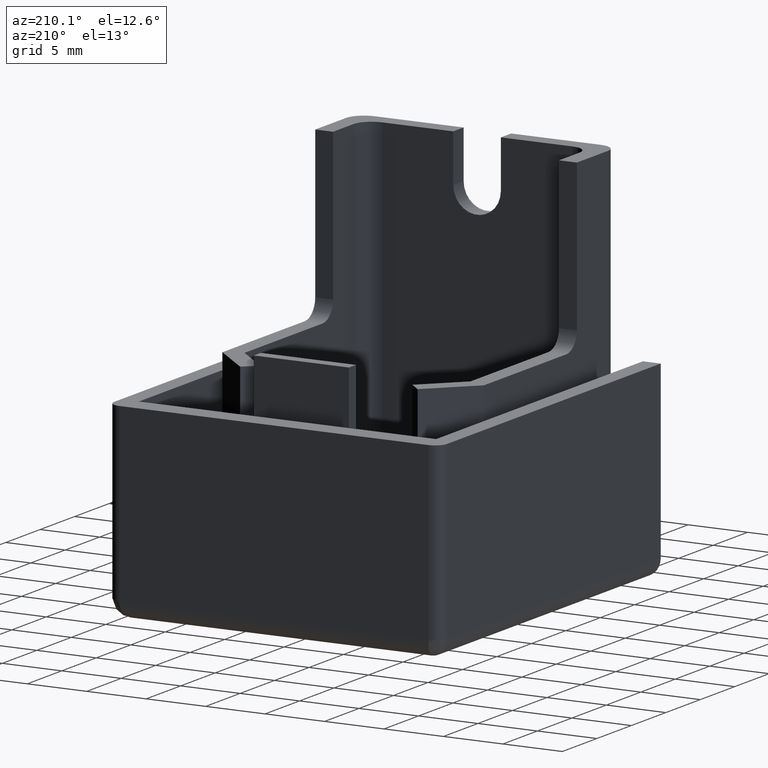
[diagram: clean part render]
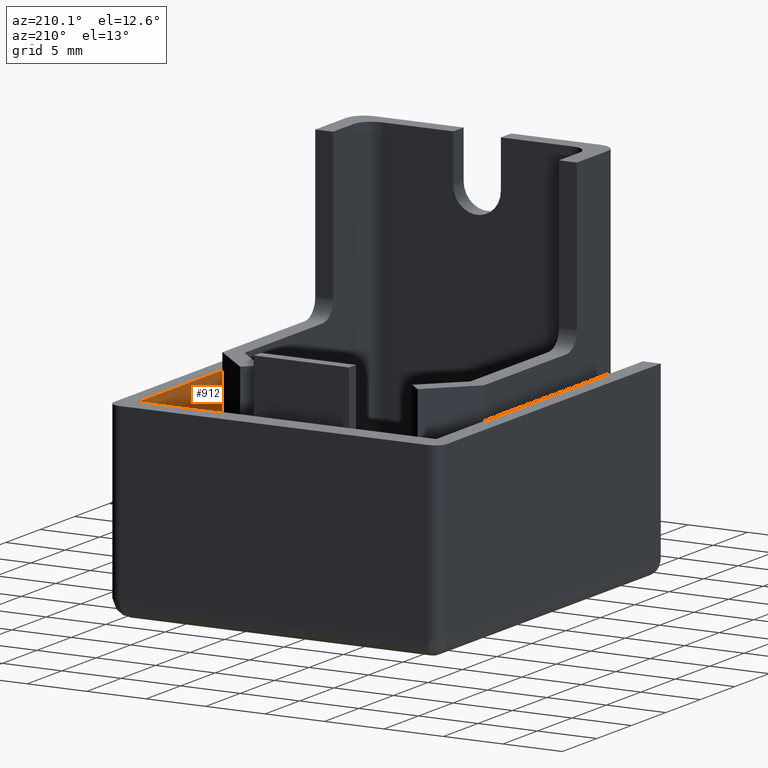
[diagram: same view with one face highlighted and labeled with its STEP entity id]
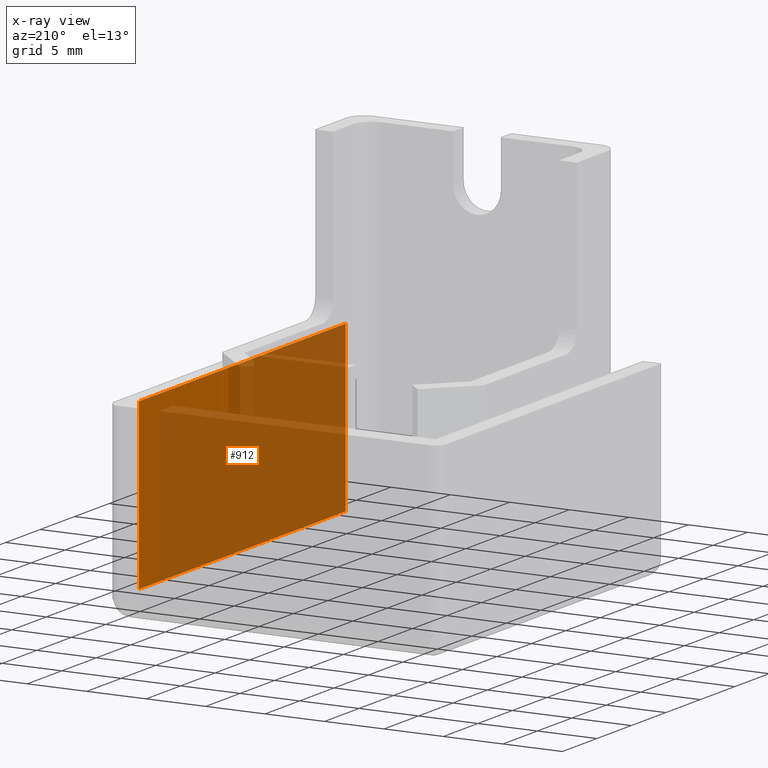
[diagram: x-ray of the same camera — body ghosted, the highlighted face saturated]
A machine part, auxiliary view. The second image highlights one B-rep face of the part: STEP entity #912.
The next image is the same camera in x-ray: the body ghosted, the highlighted face saturated — about 85% of this face is hidden behind the body in this view.
In plain terms, the highlighted planar face has unit normal (1, 0, 0).
Its self-contained STEP definition (entity closure, byte-faithful):
#46=PLANE('',#983);
#61=LINE('',#1338,#166);
#102=LINE('',#1433,#207);
#147=LINE('',#1540,#252);
#148=LINE('',#1541,#253);
#166=VECTOR('',#1030,14.);
#207=VECTOR('',#1109,30.);
#252=VECTOR('',#1214,30.);
#253=VECTOR('',#1215,14.);
#315=FACE_OUTER_BOUND('',#366,.T.);
#366=EDGE_LOOP('',(#831,#832,#833,#834));
#409=VERTEX_POINT('',#1335);
#410=VERTEX_POINT('',#1337);
#445=VERTEX_POINT('',#1430);
#477=VERTEX_POINT('',#1539);
#499=EDGE_CURVE('',#409,#410,#61,.T.);
#546=EDGE_CURVE('',#445,#410,#102,.T.);
#599=EDGE_CURVE('',#477,#409,#147,.T.);
#600=EDGE_CURVE('',#477,#445,#148,.T.);
#831=ORIENTED_EDGE('',*,*,#599,.F.);
#832=ORIENTED_EDGE('',*,*,#600,.T.);
#833=ORIENTED_EDGE('',*,*,#546,.T.);
#834=ORIENTED_EDGE('',*,*,#499,.F.);
#912=ADVANCED_FACE('',(#315),#46,.F.);
#983=AXIS2_PLACEMENT_3D('',#1538,#1212,#1213);
#1030=DIRECTION('',(0.,0.,-1.));
#1109=DIRECTION('',(2.22044604925031E-16,-1.,0.));
#1212=DIRECTION('center_axis',(1.,2.22044604925031E-16,0.));
#1213=DIRECTION('ref_axis',(1.77635683940025E-16,-1.,0.));
#1214=DIRECTION('',(2.22044604925031E-16,-1.,0.));
#1215=DIRECTION('',(0.,0.,-1.));
#1335=CARTESIAN_POINT('',(12.5,-15.5,8.));
#1337=CARTESIAN_POINT('',(12.5,-15.5,-6.));
#1338=CARTESIAN_POINT('',(12.5,-15.5,4.));
#1430=CARTESIAN_POINT('',(12.5,14.5,-6.));
#1433=CARTESIAN_POINT('',(12.5,-15.5,-6.));
#1538=CARTESIAN_POINT('Origin',(12.5,14.5,8.));
#1539=CARTESIAN_POINT('',(12.5,14.5,8.));
#1540=CARTESIAN_POINT('',(12.5,7.38949846695918,8.));
#1541=CARTESIAN_POINT('',(12.5,14.5,8.));